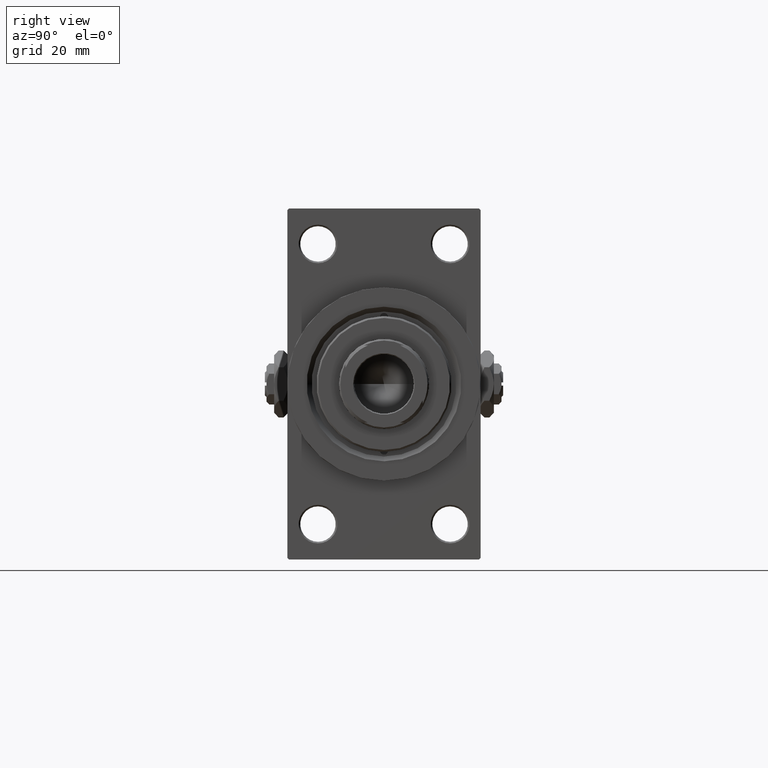
[diagram: clean part render]
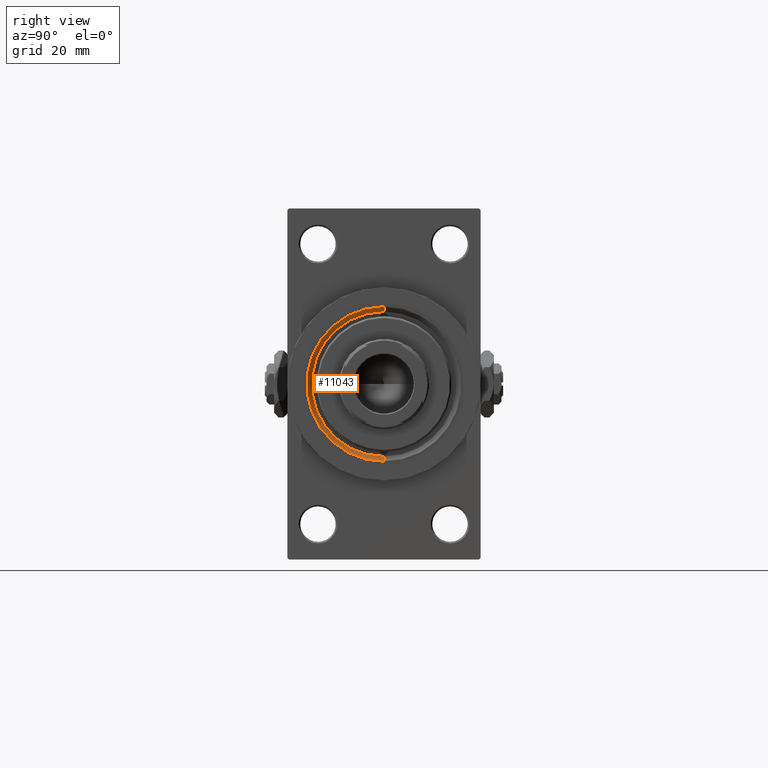
[diagram: same view with one face highlighted and labeled with its STEP entity id]
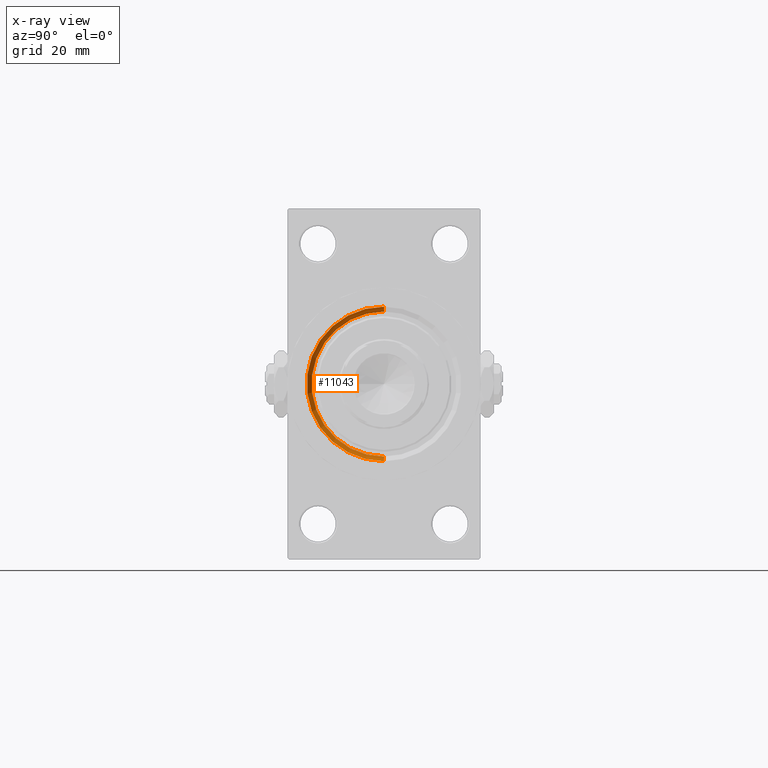
[diagram: x-ray of the same camera — body ghosted, the highlighted face saturated]
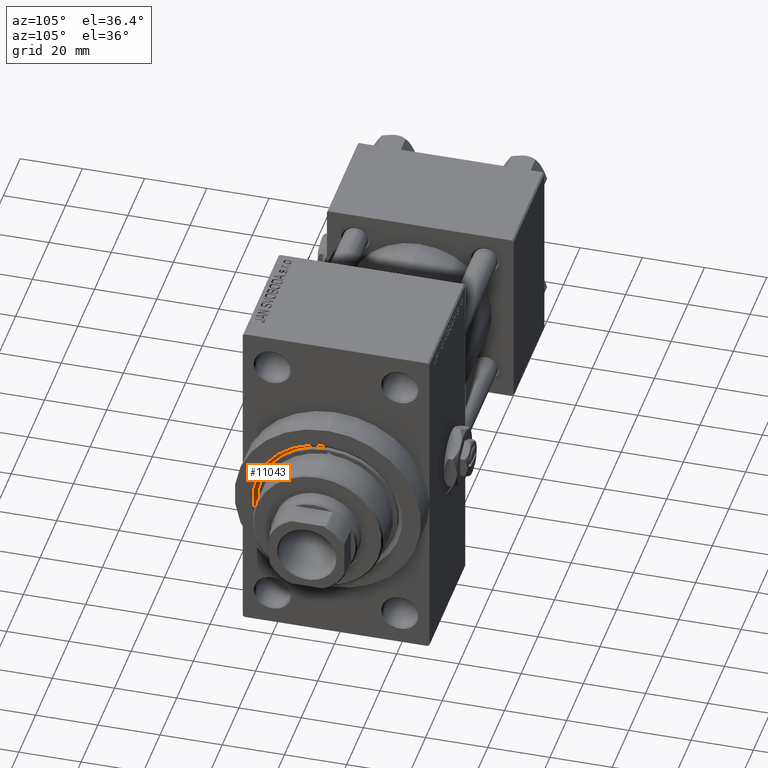
[diagram: same view with one face highlighted and labeled with its STEP entity id]
A machine part, right view. The second image highlights one B-rep face of the part: STEP entity #11043.
The next image is the same camera in x-ray: the body ghosted, the highlighted face saturated — about 0% of this face is hidden behind the body in this view.
A second angle (auxiliary view) of the same face is appended — the face is thin or edge-on in the first view.
In plain terms, the highlighted conical surface has half-angle 45 deg.
Its self-contained STEP definition (entity closure, byte-faithful):
#111 = CARTESIAN_POINT ( 'NONE',  ( 146.5000000000000568, 2.755455298081545172E-15, 22.50000000000000355 ) ) ;
#327 = LINE ( 'NONE', #15417, #5148 ) ;
#5148 = VECTOR ( 'NONE', #26809, 1000.000000000000000 ) ;
#5584 = EDGE_CURVE ( 'NONE', #18223, #14538, #22636, .T. ) ;
#7813 = DIRECTION ( 'NONE',  ( 0.7071067811865491270, 0.000000000000000000, -0.7071067811865459074 ) ) ;
#11043 = ADVANCED_FACE ( 'NONE', ( #18974 ), #13531, .F. ) ;
#12594 = EDGE_CURVE ( 'NONE', #14538, #33514, #48296, .T. ) ;
#13531 = CONICAL_SURFACE ( 'NONE', #25368, 22.50000000000000355, 0.7853981633974460586 ) ;
#14538 = VERTEX_POINT ( 'NONE', #39226 ) ;
#14944 = DIRECTION ( 'NONE',  ( 0.000000000000000000, 0.000000000000000000, -1.000000000000000000 ) ) ;
#15417 = CARTESIAN_POINT ( 'NONE',  ( 146.5000000000000568, 2.755455298081545172E-15, 22.50000000000000355 ) ) ;
#15771 = DIRECTION ( 'NONE',  ( 0.000000000000000000, 0.000000000000000000, -1.000000000000000000 ) ) ;
#18223 = VERTEX_POINT ( 'NONE', #40178 ) ;
#18933 = CARTESIAN_POINT ( 'NONE',  ( 146.5000000000000568, 0.000000000000000000, -22.50000000000000355 ) ) ;
#18974 = FACE_OUTER_BOUND ( 'NONE', #41258, .T. ) ;
#20535 = VECTOR ( 'NONE', #7813, 1000.000000000000000 ) ;
#20964 = AXIS2_PLACEMENT_3D ( 'NONE', #45665, #31019, #14944 ) ;
#21172 = CARTESIAN_POINT ( 'NONE',  ( 148.0000000000000284, 0.000000000000000000, 0.000000000000000000 ) ) ;
#22436 = CARTESIAN_POINT ( 'NONE',  ( 146.5000000000000568, 0.000000000000000000, 0.000000000000000000 ) ) ;
#22636 = LINE ( 'NONE', #18933, #20535 ) ;
#23683 = EDGE_CURVE ( 'NONE', #29918, #18223, #28105, .T. ) ;
#25368 = AXIS2_PLACEMENT_3D ( 'NONE', #22436, #30131, #15771 ) ;
#26543 = ORIENTED_EDGE ( 'NONE', *, *, #23683, .F. ) ;
#26809 = DIRECTION ( 'NONE',  ( 0.7071067811865491270, 8.659560562354913137E-17, 0.7071067811865459074 ) ) ;
#27079 = EDGE_CURVE ( 'NONE', #29918, #33514, #327, .T. ) ;
#28105 = CIRCLE ( 'NONE', #20964, 22.50000000000000355 ) ;
#29918 = VERTEX_POINT ( 'NONE', #111 ) ;
#30131 = DIRECTION ( 'NONE',  ( 1.000000000000000000, 0.000000000000000000, 0.000000000000000000 ) ) ;
#31019 = DIRECTION ( 'NONE',  ( 1.000000000000000000, 0.000000000000000000, 0.000000000000000000 ) ) ;
#33514 = VERTEX_POINT ( 'NONE', #36290 ) ;
#36075 = DIRECTION ( 'NONE',  ( -1.000000000000000000, -0.000000000000000000, -0.000000000000000000 ) ) ;
#36290 = CARTESIAN_POINT ( 'NONE',  ( 148.0000000000000284, 2.939152317953644345E-15, 23.99999999999996803 ) ) ;
#37946 = AXIS2_PLACEMENT_3D ( 'NONE', #21172, #36075, #44248 ) ;
#39226 = CARTESIAN_POINT ( 'NONE',  ( 148.0000000000000284, 0.000000000000000000, -23.99999999999996803 ) ) ;
#40178 = CARTESIAN_POINT ( 'NONE',  ( 146.5000000000000568, 0.000000000000000000, -22.50000000000000355 ) ) ;
#40589 = ORIENTED_EDGE ( 'NONE', *, *, #27079, .T. ) ;
#41258 = EDGE_LOOP ( 'NONE', ( #26543, #40589, #43601, #42009 ) ) ;
#42009 = ORIENTED_EDGE ( 'NONE', *, *, #5584, .F. ) ;
#43601 = ORIENTED_EDGE ( 'NONE', *, *, #12594, .F. ) ;
#44248 = DIRECTION ( 'NONE',  ( 0.000000000000000000, 0.000000000000000000, -1.000000000000000000 ) ) ;
#45665 = CARTESIAN_POINT ( 'NONE',  ( 146.5000000000000568, 0.000000000000000000, 0.000000000000000000 ) ) ;
#48296 = CIRCLE ( 'NONE', #37946, 23.99999999999996803 ) ;